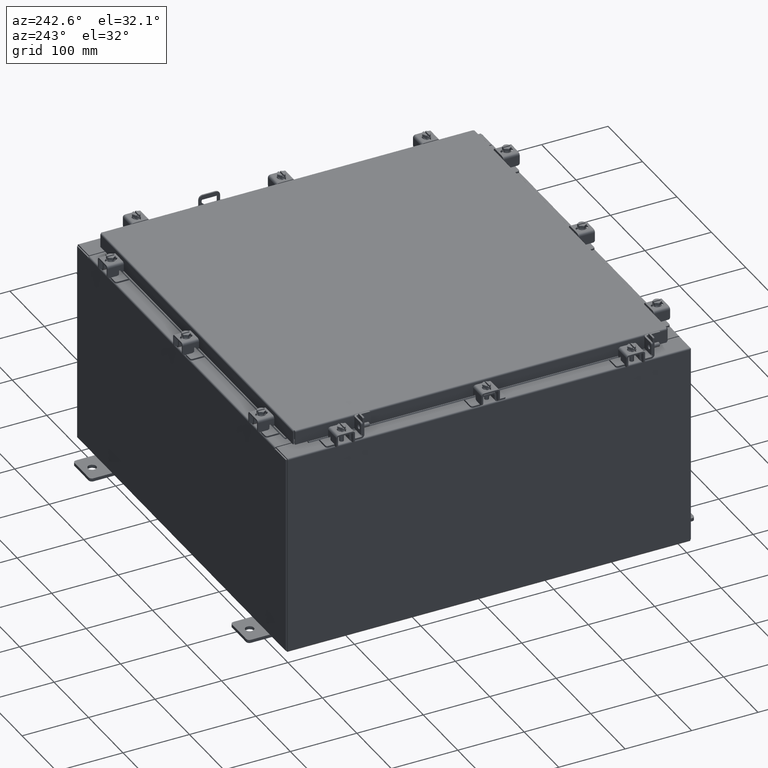
[diagram: clean part render]
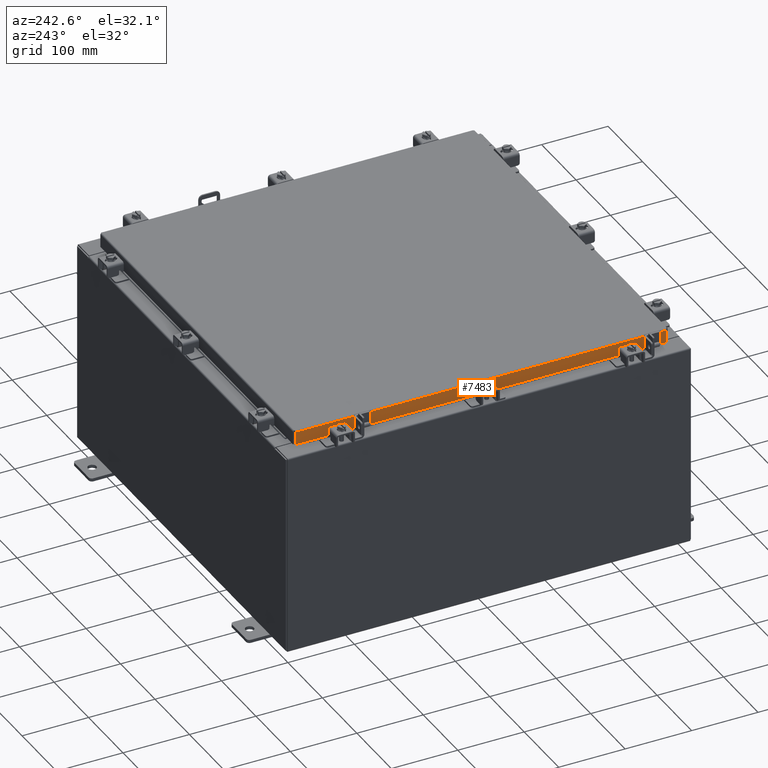
[diagram: same view with one face highlighted and labeled with its STEP entity id]
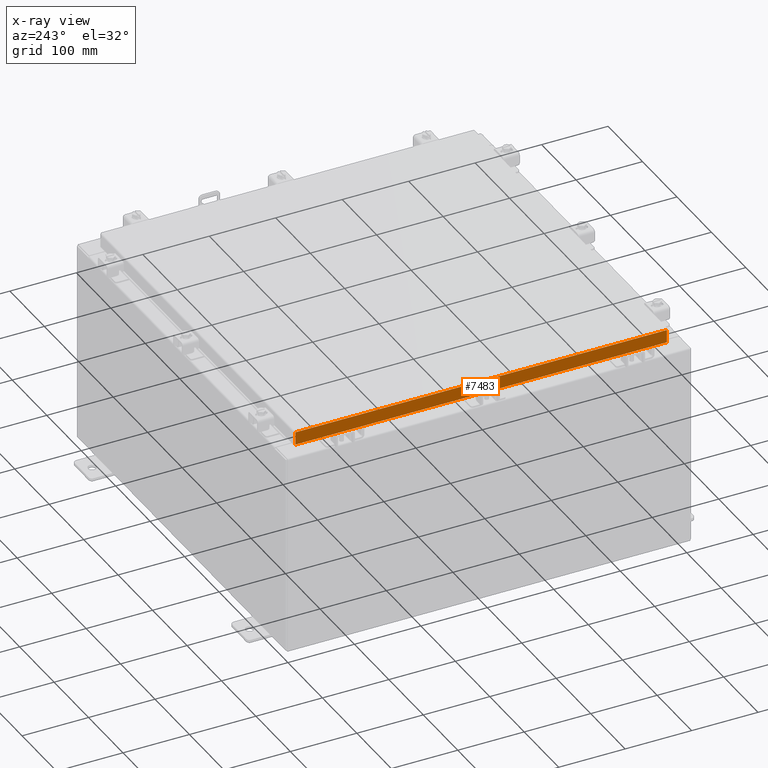
[diagram: x-ray of the same camera — body ghosted, the highlighted face saturated]
A machine part, auxiliary view. The second image highlights one B-rep face of the part: STEP entity #7483.
The next image is the same camera in x-ray: the body ghosted, the highlighted face saturated — about 0% of this face is hidden behind the body in this view.
In plain terms, the highlighted planar face has unit normal (1, 0, -0).
Its self-contained STEP definition (entity closure, byte-faithful):
#823 = AXIS2_PLACEMENT_3D ( 'NONE', #20744, #1638, #13793 ) ;
#849 = DIRECTION ( 'NONE',  ( 3.297150052053608400E-031, -1.000000000000000000, -8.987264781119276500E-046 ) ) ;
#892 = CARTESIAN_POINT ( 'NONE',  ( -11.09399999999999200, -10.25515786437626400, -0.8500000000000020900 ) ) ;
#1419 = ORIENTED_EDGE ( 'NONE', *, *, #16749, .F. ) ;
#1638 = DIRECTION ( 'NONE',  ( 1.000000000000000000, 3.297150052053607500E-031, -2.818880942772360100E-015 ) ) ;
#2217 = VECTOR ( 'NONE', #15891, 39.37007874015748100 ) ;
#3357 = VERTEX_POINT ( 'NONE', #22311 ) ;
#3389 = FACE_OUTER_BOUND ( 'NONE', #9946, .T. ) ;
#3758 = CARTESIAN_POINT ( 'NONE',  ( -11.09400000000000100, -11.09400000000000100, -0.8499999999999999800 ) ) ;
#3956 = ORIENTED_EDGE ( 'NONE', *, *, #5824, .F. ) ;
#4210 = ORIENTED_EDGE ( 'NONE', *, *, #12358, .F. ) ;
#4280 = VERTEX_POINT ( 'NONE', #21563 ) ;
#4972 = EDGE_CURVE ( 'NONE', #14299, #4280, #15560, .T. ) ;
#5701 = CARTESIAN_POINT ( 'NONE',  ( -11.09400000000000100, -11.00515786437626200, -0.8499999999999999800 ) ) ;
#5824 = EDGE_CURVE ( 'NONE', #14027, #14299, #8656, .T. ) ;
#6008 = DIRECTION ( 'NONE',  ( 4.379057701015054300E-047, 1.000000000000000000, 1.169666303398706800E-016 ) ) ;
#7483 = ADVANCED_FACE ( 'NONE', ( #3389 ), #12039, .F. ) ;
#8413 = ORIENTED_EDGE ( 'NONE', *, *, #4972, .F. ) ;
#8656 = LINE ( 'NONE', #19243, #13263 ) ;
#8792 = DIRECTION ( 'NONE',  ( -0.0000000000000000000, 1.000000000000000000, -0.0000000000000000000 ) ) ;
#9474 = CARTESIAN_POINT ( 'NONE',  ( -11.09399999999999900, 11.00515786437626700, 1.092739197465705300E-013 ) ) ;
#9946 = EDGE_LOOP ( 'NONE', ( #1419, #15920, #8413, #3956, #15877, #4210 ) ) ;
#10465 = VECTOR ( 'NONE', #849, 39.37007874015748100 ) ;
#10607 = EDGE_CURVE ( 'NONE', #3357, #4280, #22202, .T. ) ;
#10617 = EDGE_CURVE ( 'NONE', #17832, #14027, #18098, .T. ) ;
#12039 = PLANE ( 'NONE',  #823 ) ;
#12089 = DIRECTION ( 'NONE',  ( -2.818880942772360100E-015, 6.982962677686267500E-015, -1.000000000000000000 ) ) ;
#12358 = EDGE_CURVE ( 'NONE', #22402, #17832, #16142, .T. ) ;
#13263 = VECTOR ( 'NONE', #8792, 39.37007874015748100 ) ;
#13665 = CARTESIAN_POINT ( 'NONE',  ( -11.09399999999999200, 10.25515786437627200, -0.8500000000000020900 ) ) ;
#13793 = DIRECTION ( 'NONE',  ( -2.818880942772360100E-015, 0.0000000000000000000, -1.000000000000000000 ) ) ;
#14027 = VERTEX_POINT ( 'NONE', #892 ) ;
#14299 = VERTEX_POINT ( 'NONE', #13665 ) ;
#14380 = CARTESIAN_POINT ( 'NONE',  ( -11.09399999999999900, -11.00515786437626700, -0.08770000000000026400 ) ) ;
#15560 = LINE ( 'NONE', #3758, #2217 ) ;
#15877 = ORIENTED_EDGE ( 'NONE', *, *, #10617, .F. ) ;
#15891 = DIRECTION ( 'NONE',  ( 4.379057701015054300E-047, 1.000000000000000000, 1.169666303398706800E-016 ) ) ;
#15920 = ORIENTED_EDGE ( 'NONE', *, *, #10607, .T. ) ;
#16142 = LINE ( 'NONE', #20874, #20273 ) ;
#16749 = EDGE_CURVE ( 'NONE', #3357, #22402, #19746, .T. ) ;
#17559 = VECTOR ( 'NONE', #21639, 39.37007874015748100 ) ;
#17832 = VERTEX_POINT ( 'NONE', #5701 ) ;
#18098 = LINE ( 'NONE', #18147, #21638 ) ;
#18147 = CARTESIAN_POINT ( 'NONE',  ( -11.09400000000000100, -11.09400000000000100, -0.8499999999999999800 ) ) ;
#19243 = CARTESIAN_POINT ( 'NONE',  ( -11.09399999999999200, -10.25515786437626400, -0.8500000000000020900 ) ) ;
#19746 = LINE ( 'NONE', #21726, #10465 ) ;
#20273 = VECTOR ( 'NONE', #12089, 39.37007874015748100 ) ;
#20744 = CARTESIAN_POINT ( 'NONE',  ( -11.09399999999999900, 0.0000000000000000000, 3.059669752903974500E-014 ) ) ;
#20874 = CARTESIAN_POINT ( 'NONE',  ( -11.09399999999999900, -11.00515786437626700, -0.07470000000000015500 ) ) ;
#21563 = CARTESIAN_POINT ( 'NONE',  ( -11.09400000000000100, 11.00515786437627100, -0.8499999999999977600 ) ) ;
#21638 = VECTOR ( 'NONE', #6008, 39.37007874015748100 ) ;
#21639 = DIRECTION ( 'NONE',  ( -2.818880942772360100E-015, 6.982962677686267500E-015, -1.000000000000000000 ) ) ;
#21726 = CARTESIAN_POINT ( 'NONE',  ( -11.09399999999999900, -11.09400000000000100, -0.08770000000000026400 ) ) ;
#22202 = LINE ( 'NONE', #9474, #17559 ) ;
#22311 = CARTESIAN_POINT ( 'NONE',  ( -11.09399999999999900, 11.00515786437626900, -0.08770000000000026400 ) ) ;
#22402 = VERTEX_POINT ( 'NONE', #14380 ) ;